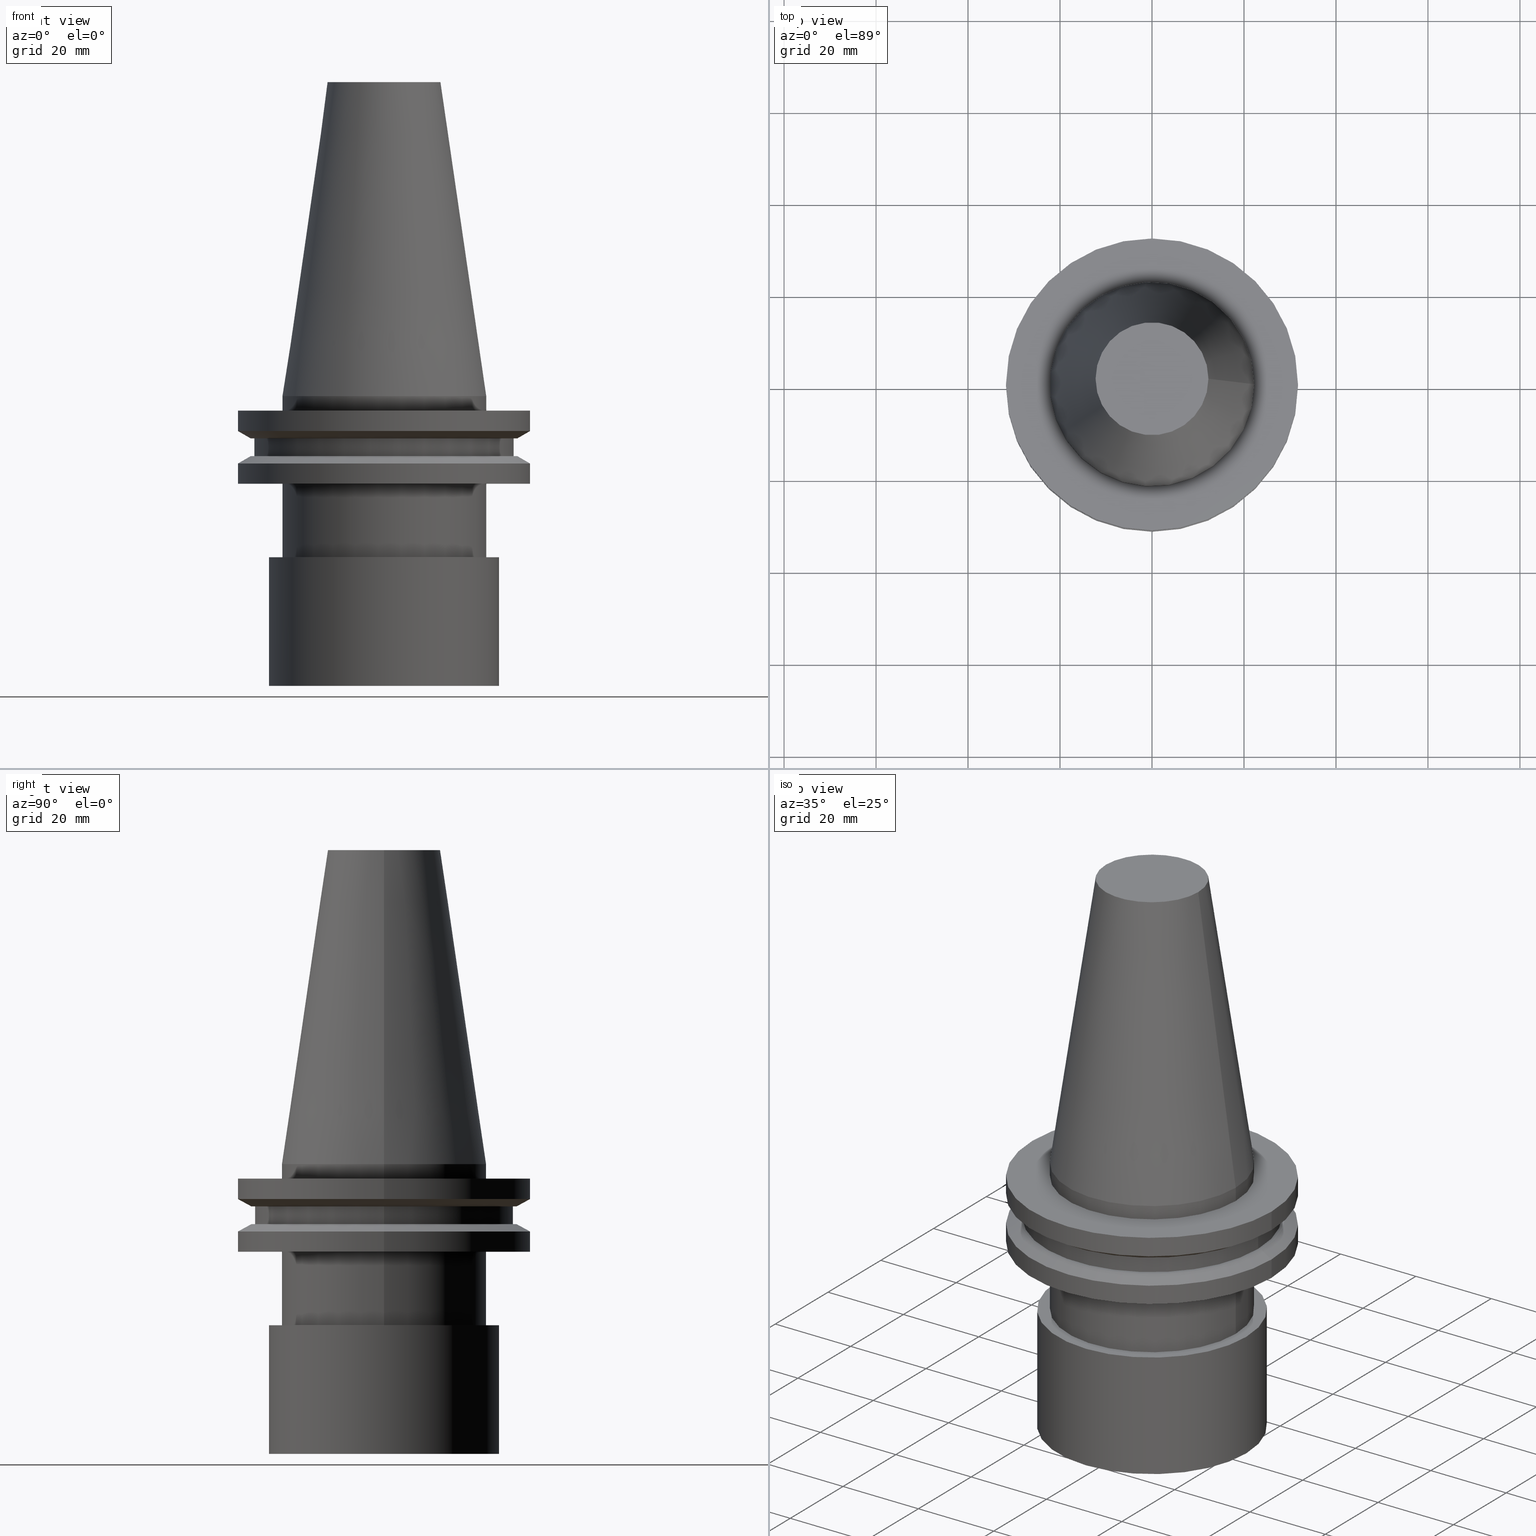
[diagram: canonical four-view strip — front | top / right | iso, engineering-drawing reading convention]
A machine part, canonical four-view strip (front | top / right | iso — engineering-drawing reading convention). The complete STEP part file that produces these views, byte-faithful:
ISO-10303-21;
HEADER;
FILE_DESCRIPTION (( 'STEP AP203' ),
    '1' );
FILE_NAME ('11.368.451.stp',
    '2022-03-09T15:13:18',
    ( '' ),
    ( '' ),
    'SwSTEP 2.0',
    'SolidWorks 2021',
    '' );
FILE_SCHEMA (( 'CONFIG_CONTROL_DESIGN' ));
ENDSEC;

DATA;
#1 = CYLINDRICAL_SURFACE ( 'NONE', #33, 22.22500000000000142 ) ;
#2 = EDGE_CURVE ( 'NONE', #164, #164, #133, .T. ) ;
#3 = DATE_AND_TIME ( #94, #137 ) ;
#4 = CYLINDRICAL_SURFACE ( 'NONE', #263, 25.00000000000000711 ) ;
#5 = PERSON_AND_ORGANIZATION ( #29, #269 ) ;
#6 = CARTESIAN_POINT ( 'NONE',  ( 0.000000000000000000, 0.000000000000000000, -19.04999999999999716 ) ) ;
#7 = AXIS2_PLACEMENT_3D ( 'NONE', #377, #108, #67 ) ;
#8 = DIRECTION ( 'NONE',  ( 0.000000000000000000, 0.000000000000000000, -1.000000000000000000 ) ) ;
#9 = CIRCLE ( 'NONE', #68, 31.75000000000000000 ) ;
#10 = COORDINATED_UNIVERSAL_TIME_OFFSET ( 6, 0, .BEHIND. ) ;
#11 = CARTESIAN_POINT ( 'NONE',  ( 0.000000000000000000, 0.000000000000000000, -13.05499999999999794 ) ) ;
#12 = CARTESIAN_POINT ( 'NONE',  ( 22.22500000000000142, 0.000000000000000000, -3.174999999999997158 ) ) ;
#13 = EDGE_CURVE ( 'NONE', #168, #168, #159, .T. ) ;
#14 = EDGE_LOOP ( 'NONE', ( #147 ) ) ;
#15 = DIRECTION ( 'NONE',  ( 0.000000000000000000, 0.000000000000000000, -1.000000000000000000 ) ) ;
#16 = DIRECTION ( 'NONE',  ( 0.000000000000000000, 3.943406508882353361E-16, 1.000000000000000000 ) ) ;
#17 = ADVANCED_FACE ( 'NONE', ( #181, #27 ), #180, .T. ) ;
#18 = CARTESIAN_POINT ( 'NONE',  ( 28.17999999999999972, 0.000000000000000000, -9.204999999999991189 ) ) ;
#19 = CARTESIAN_POINT ( 'NONE',  ( 0.000000000000000000, 0.000000000000000000, -14.65472339340266572 ) ) ;
#20 = APPROVAL_DATE_TIME ( #297, #187 ) ;
#21 = EDGE_LOOP ( 'NONE', ( #121 ) ) ;
#22 = PERSON_AND_ORGANIZATION ( #29, #269 ) ;
#23 = EDGE_LOOP ( 'NONE', ( #200 ) ) ;
#24 = CYLINDRICAL_SURFACE ( 'NONE', #382, 22.22500000000000142 ) ;
#25 = EDGE_LOOP ( 'NONE', ( #154 ) ) ;
#26 = PERSON_AND_ORGANIZATION_ROLE ( 'creator' ) ;
#27 = FACE_BOUND ( 'NONE', #88, .T. ) ;
#28 = CC_DESIGN_PERSON_AND_ORGANIZATION_ASSIGNMENT ( #122, #173, ( #109 ) ) ;
#29 = PERSON ( 'UNSPECIFIED', 'UNSPECIFIED', 'UNSPECIFIED', ('UNSPECIFIED'), ('UNSPECIFIED'), ('UNSPECIFIED') ) ;
#30 = FACE_OUTER_BOUND ( 'NONE', #171, .T. ) ;
#31 = CARTESIAN_POINT ( 'NONE',  ( 0.000000000000000000, 31.74999999999999289, -19.04999999999999716 ) ) ;
#32 = EDGE_CURVE ( 'NONE', #135, #135, #212, .T. ) ;
#33 = AXIS2_PLACEMENT_3D ( 'NONE', #219, #36, #183 ) ;
#34 = DIRECTION ( 'NONE',  ( 1.000000000000000000, 0.000000000000000000, 0.000000000000000000 ) ) ;
#35 = APPROVAL_STATUS ( 'not_yet_approved' ) ;
#36 = DIRECTION ( 'NONE',  ( -0.000000000000000000, -0.000000000000000000, 1.000000000000000000 ) ) ;
#37 = AXIS2_PLACEMENT_3D ( 'NONE', #100, #288, #374 ) ;
#38 = CARTESIAN_POINT ( 'NONE',  ( 0.000000000000000000, 0.000000000000000000, -19.04999999999999716 ) ) ;
#39 = AXIS2_PLACEMENT_3D ( 'NONE', #93, #95, #312 ) ;
#40 = CARTESIAN_POINT ( 'NONE',  ( 0.000000000000000000, 12.27178102086201150, 68.25000000000000000 ) ) ;
#41 = VERTEX_POINT ( 'NONE', #379 ) ;
#42 = CC_DESIGN_PERSON_AND_ORGANIZATION_ASSIGNMENT ( #5, #395, ( #277 ) ) ;
#43 = EDGE_LOOP ( 'NONE', ( #50 ) ) ;
#44 = AXIS2_PLACEMENT_3D ( 'NONE', #143, #383, #256 ) ;
#45 = FACE_OUTER_BOUND ( 'NONE', #54, .T. ) ;
#46 = DIRECTION ( 'NONE',  ( 1.000000000000000000, 0.000000000000000000, 0.000000000000000000 ) ) ;
#47 = CC_DESIGN_DATE_AND_TIME_ASSIGNMENT ( #279, #244, ( #277 ) ) ;
#48 = CARTESIAN_POINT ( 'NONE',  ( 0.000000000000000000, 25.00000000000000000, -63.00000000000000000 ) ) ;
#49 = ORIENTED_EDGE ( 'NONE', *, *, #148, .T. ) ;
#50 = ORIENTED_EDGE ( 'NONE', *, *, #335, .T. ) ;
#51 = AXIS2_PLACEMENT_3D ( 'NONE', #125, #242, #366 ) ;
#52 = VERTEX_POINT ( 'NONE', #274 ) ;
#53 = ADVANCED_FACE ( 'NONE', ( #300, #61 ), #24, .T. ) ;
#54 = EDGE_LOOP ( 'NONE', ( #230 ) ) ;
#55 = COORDINATED_UNIVERSAL_TIME_OFFSET ( 6, 0, .BEHIND. ) ;
#56 = CARTESIAN_POINT ( 'NONE',  ( 0.000000000000000000, 0.000000000000000000, -3.174999999999997158 ) ) ;
#57 = ORIENTED_EDGE ( 'NONE', *, *, #351, .T. ) ;
#58 = MANIFOLD_SOLID_BREP ( 'CKB', #224 ) ;
#59 = COORDINATED_UNIVERSAL_TIME_OFFSET ( 6, 0, .BEHIND. ) ;
#60 = DIRECTION ( 'NONE',  ( -0.000000000000000000, -0.000000000000000000, 1.000000000000000000 ) ) ;
#61 = FACE_OUTER_BOUND ( 'NONE', #271, .T. ) ;
#62 = DIRECTION ( 'NONE',  ( 1.000000000000000000, 0.000000000000000000, 0.000000000000000000 ) ) ;
#63 = FACE_BOUND ( 'NONE', #389, .T. ) ;
#64 = DIRECTION ( 'NONE',  ( 1.000000000000000000, 0.000000000000000000, 0.000000000000000000 ) ) ;
#65 = FACE_BOUND ( 'NONE', #124, .T. ) ;
#66 = AXIS2_PLACEMENT_3D ( 'NONE', #167, #15, #322 ) ;
#67 = DIRECTION ( 'NONE',  ( -1.000000000000000000, 0.000000000000000000, 0.000000000000000000 ) ) ;
#68 = AXIS2_PLACEMENT_3D ( 'NONE', #218, #336, #64 ) ;
#69 = PLANE ( 'NONE',  #66 ) ;
#70 = DIRECTION ( 'NONE',  ( -0.000000000000000000, -0.000000000000000000, 1.000000000000000000 ) ) ;
#71 = EDGE_CURVE ( 'NONE', #41, #41, #174, .T. ) ;
#72 = AXIS2_PLACEMENT_3D ( 'NONE', #170, #16, #142 ) ;
#73 = APPROVAL_PERSON_ORGANIZATION ( #184, #123, #92 ) ;
#74 = DIRECTION ( 'NONE',  ( 0.000000000000000000, 0.000000000000000000, -1.000000000000000000 ) ) ;
#75 = AXIS2_PLACEMENT_3D ( 'NONE', #6, #160, #251 ) ;
#76 = CARTESIAN_POINT ( 'NONE',  ( 28.17999999999999972, 0.000000000000000000, -13.05499999999999794 ) ) ;
#77 = EDGE_LOOP ( 'NONE', ( #179 ) ) ;
#78 = VERTEX_POINT ( 'NONE', #302 ) ;
#79 = ORIENTED_EDGE ( 'NONE', *, *, #371, .T. ) ;
#80 = CIRCLE ( 'NONE', #316, 28.97919780457007732 ) ;
#81 = APPROVAL_ROLE ( '' ) ;
#82 = ORIENTED_EDGE ( 'NONE', *, *, #211, .T. ) ;
#83 = VERTEX_POINT ( 'NONE', #206 ) ;
#84 = ORIENTED_EDGE ( 'NONE', *, *, #105, .T. ) ;
#85 = ADVANCED_FACE ( 'NONE', ( #30, #128 ), #370, .T. ) ;
#86 = APPROVAL_PERSON_ORGANIZATION ( #384, #330, #81 ) ;
#87 = CARTESIAN_POINT ( 'NONE',  ( 0.000000000000000000, 0.000000000000000000, 0.000000000000000000 ) ) ;
#88 = EDGE_LOOP ( 'NONE', ( #155 ) ) ;
#89 = SECURITY_CLASSIFICATION_LEVEL ( 'unclassified' ) ;
#90 = AXIS2_PLACEMENT_3D ( 'NONE', #31, #340, #34 ) ;
#91 = EDGE_LOOP ( 'NONE', ( #152 ) ) ;
#92 = APPROVAL_ROLE ( '' ) ;
#93 = CARTESIAN_POINT ( 'NONE',  ( 0.000000000000000000, 0.000000000000000000, 68.25000000000000000 ) ) ;
#94 = CALENDAR_DATE ( 2022, 9, 3 ) ;
#95 = DIRECTION ( 'NONE',  ( -0.000000000000000000, -0.000000000000000000, 1.000000000000000000 ) ) ;
#96 = PERSON_AND_ORGANIZATION ( #29, #269 ) ;
#97 = FACE_OUTER_BOUND ( 'NONE', #43, .T. ) ;
#98 = APPLICATION_CONTEXT ( 'configuration controlled 3d designs of mechanical parts and assemblies' ) ;
#99 = CYLINDRICAL_SURFACE ( 'NONE', #172, 31.75000000000000000 ) ;
#100 = CARTESIAN_POINT ( 'NONE',  ( 0.000000000000000000, 0.000000000000000000, -35.04999999999999716 ) ) ;
#101 = CC_DESIGN_APPROVAL ( #123, ( #277 ) ) ;
#102 = DIRECTION ( 'NONE',  ( 1.000000000000000000, 0.000000000000000000, 0.000000000000000000 ) ) ;
#103 = ORIENTED_EDGE ( 'NONE', *, *, #2, .F. ) ;
#104 = PRODUCT_DEFINITION_SHAPE ( 'NONE', 'NONE',  #293 ) ;
#105 = EDGE_CURVE ( 'NONE', #350, #350, #344, .T. ) ;
#106 = FACE_BOUND ( 'NONE', #334, .T. ) ;
#107 = ORIENTED_EDGE ( 'NONE', *, *, #13, .F. ) ;
#108 = DIRECTION ( 'NONE',  ( 0.000000000000000000, 0.000000000000000000, -1.000000000000000000 ) ) ;
#109 = PRODUCT ( '11.368.451', '11.368.451', '', ( #209 ) ) ;
#110 = ORIENTED_EDGE ( 'NONE', *, *, #335, .F. ) ;
#111 = LOCAL_TIME ( 9, 13, 18.00000000000000000, #59 ) ;
#112 = FACE_OUTER_BOUND ( 'NONE', #166, .T. ) ;
#113 = DIRECTION ( 'NONE',  ( -0.000000000000000000, -3.943406508882353361E-16, -1.000000000000000000 ) ) ;
#114 = APPLICATION_CONTEXT ( 'configuration controlled 3d designs of mechanical parts and assemblies' ) ;
#115 = EDGE_LOOP ( 'NONE', ( #84 ) ) ;
#116 = LOCAL_TIME ( 9, 13, 18.00000000000000000, #203 ) ;
#117 = DATE_TIME_ROLE ( 'creation_date' ) ;
#118 = EDGE_LOOP ( 'NONE', ( #359 ) ) ;
#119 = ADVANCED_FACE ( 'NONE', ( #214, #186 ), #1, .T. ) ;
#120 = VERTEX_POINT ( 'NONE', #355 ) ;
#121 = ORIENTED_EDGE ( 'NONE', *, *, #236, .T. ) ;
#122 = PERSON_AND_ORGANIZATION ( #29, #269 ) ;
#123 = APPROVAL ( #35, 'UNSPECIFIED' ) ;
#124 = EDGE_LOOP ( 'NONE', ( #82 ) ) ;
#125 = CARTESIAN_POINT ( 'NONE',  ( 0.000000000000000000, 0.000000000000000000, -9.205000000000005400 ) ) ;
#126 = CARTESIAN_POINT ( 'NONE',  ( 0.000000000000000000, -1.102182119232617911E-14, -63.00000000000000000 ) ) ;
#127 = APPROVAL_DATE_TIME ( #3, #123 ) ;
#128 = FACE_OUTER_BOUND ( 'NONE', #115, .T. ) ;
#129 = FACE_OUTER_BOUND ( 'NONE', #91, .T. ) ;
#130 = PERSON_AND_ORGANIZATION_ROLE ( 'creator' ) ;
#131 = ADVANCED_FACE ( 'NONE', ( #63, #337 ), #313, .F. ) ;
#132 = CARTESIAN_POINT ( 'NONE',  ( 0.000000000000000000, 0.000000000000000000, -9.205000000000005400 ) ) ;
#133 = CIRCLE ( 'NONE', #243, 28.17999999999999972 ) ;
#134 = DIRECTION ( 'NONE',  ( 1.000000000000000000, 0.000000000000000000, 0.000000000000000000 ) ) ;
#135 = VERTEX_POINT ( 'NONE', #294 ) ;
#136 = CONICAL_SURFACE ( 'NONE', #226, 31.75000000000000000, 1.047197551196597853 ) ;
#137 = LOCAL_TIME ( 9, 13, 18.00000000000000000, #286 ) ;
#138 = DIRECTION ( 'NONE',  ( 0.000000000000000000, 1.000000000000000000, -3.943406508882353361E-16 ) ) ;
#139 = ORIENTED_EDGE ( 'NONE', *, *, #2, .T. ) ;
#140 = CC_DESIGN_PERSON_AND_ORGANIZATION_ASSIGNMENT ( #158, #311, ( #283 ) ) ;
#141 = FACE_BOUND ( 'NONE', #14, .T. ) ;
#142 = DIRECTION ( 'NONE',  ( 0.000000000000000000, -1.000000000000000000, 3.943406508882353361E-16 ) ) ;
#143 = CARTESIAN_POINT ( 'NONE',  ( 0.000000000000000000, 28.97919780457007732, -9.204999999999996518 ) ) ;
#144 = CALENDAR_DATE ( 2022, 9, 3 ) ;
#145 = DIRECTION ( 'NONE',  ( -0.000000000000000000, -0.000000000000000000, 1.000000000000000000 ) ) ;
#146 = DATE_AND_TIME ( #144, #150 ) ;
#147 = ORIENTED_EDGE ( 'NONE', *, *, #32, .F. ) ;
#148 = EDGE_CURVE ( 'NONE', #196, #196, #349, .T. ) ;
#149 = AXIS2_PLACEMENT_3D ( 'NONE', #87, #273, #305 ) ;
#150 = LOCAL_TIME ( 9, 13, 18.00000000000000000, #55 ) ;
#151 = CARTESIAN_POINT ( 'NONE',  ( 22.22500000000000142, 0.000000000000000000, 0.000000000000000000 ) ) ;
#152 = ORIENTED_EDGE ( 'NONE', *, *, #222, .F. ) ;
#153 = APPLICATION_PROTOCOL_DEFINITION ( 'international standard', 'config_control_design', 1994, #114 ) ;
#154 = ORIENTED_EDGE ( 'NONE', *, *, #32, .T. ) ;
#155 = ORIENTED_EDGE ( 'NONE', *, *, #258, .T. ) ;
#156 = AXIS2_PLACEMENT_3D ( 'NONE', #48, #291, #138 ) ;
#157 = DIRECTION ( 'NONE',  ( -0.000000000000000000, -0.000000000000000000, 1.000000000000000000 ) ) ;
#158 = PERSON_AND_ORGANIZATION ( #29, #269 ) ;
#159 = CIRCLE ( 'NONE', #190, 22.22500000000000142 ) ;
#160 = DIRECTION ( 'NONE',  ( -0.000000000000000000, -0.000000000000000000, 1.000000000000000000 ) ) ;
#161 = PLANE ( 'NONE',  #90 ) ;
#162 = CARTESIAN_POINT ( 'NONE',  ( 0.000000000000000000, -1.102182119232617438E-14, -62.99999999999998579 ) ) ;
#163 = DIRECTION ( 'NONE',  ( -0.000000000000000000, -0.000000000000000000, 1.000000000000000000 ) ) ;
#164 = VERTEX_POINT ( 'NONE', #18 ) ;
#165 = DIRECTION ( 'NONE',  ( -0.000000000000000000, -0.000000000000000000, 1.000000000000000000 ) ) ;
#166 = EDGE_LOOP ( 'NONE', ( #79 ) ) ;
#167 = CARTESIAN_POINT ( 'NONE',  ( 0.000000000000000000, 31.75000000000000000, -3.174999999999999378 ) ) ;
#168 = VERTEX_POINT ( 'NONE', #12 ) ;
#169 = ADVANCED_FACE ( 'NONE', ( #254, #65 ), #161, .F. ) ;
#170 = CARTESIAN_POINT ( 'NONE',  ( 0.000000000000000000, 1.943806861786963632E-30, -35.04999999999999005 ) ) ;
#171 = EDGE_LOOP ( 'NONE', ( #103 ) ) ;
#172 = AXIS2_PLACEMENT_3D ( 'NONE', #245, #315, #134 ) ;
#173 = PERSON_AND_ORGANIZATION_ROLE ( 'design_owner' ) ;
#174 = CIRCLE ( 'NONE', #333, 31.75000000000000000 ) ;
#175 = ORIENTED_EDGE ( 'NONE', *, *, #287, .F. ) ;
#176 = CALENDAR_DATE ( 2022, 9, 3 ) ;
#177 = DIRECTION ( 'NONE',  ( 1.000000000000000000, 0.000000000000000000, 0.000000000000000000 ) ) ;
#178 = VERTEX_POINT ( 'NONE', #392 ) ;
#179 = ORIENTED_EDGE ( 'NONE', *, *, #287, .T. ) ;
#180 = CONICAL_SURFACE ( 'NONE', #51, 28.97919780457007732, 1.047197551196598297 ) ;
#181 = FACE_OUTER_BOUND ( 'NONE', #329, .T. ) ;
#182 = DIRECTION ( 'NONE',  ( -0.000000000000000000, -0.000000000000000000, 1.000000000000000000 ) ) ;
#183 = DIRECTION ( 'NONE',  ( 1.000000000000000000, 0.000000000000000000, 0.000000000000000000 ) ) ;
#184 = PERSON_AND_ORGANIZATION ( #29, #269 ) ;
#185 = DIRECTION ( 'NONE',  ( -1.000000000000000000, 0.000000000000000000, -0.000000000000000000 ) ) ;
#186 = FACE_OUTER_BOUND ( 'NONE', #77, .T. ) ;
#187 = APPROVAL ( #240, 'UNSPECIFIED' ) ;
#188 = FACE_OUTER_BOUND ( 'NONE', #391, .T. ) ;
#189 = CARTESIAN_POINT ( 'NONE',  ( 0.000000000000000000, 0.000000000000000000, 68.25000000000000000 ) ) ;
#190 = AXIS2_PLACEMENT_3D ( 'NONE', #56, #60, #306 ) ;
#191 = CARTESIAN_POINT ( 'NONE',  ( 0.000000000000000000, 0.000000000000000000, 68.25000000000000000 ) ) ;
#192 = DIRECTION ( 'NONE',  ( -1.000000000000000000, 0.000000000000000000, 0.000000000000000000 ) ) ;
#193 = DESIGN_CONTEXT ( 'detailed design', #114, 'design' ) ;
#194 = FACE_BOUND ( 'NONE', #365, .T. ) ;
#195 = ADVANCED_FACE ( 'NONE', ( #97, #129 ), #4, .T. ) ;
#196 = VERTEX_POINT ( 'NONE', #323 ) ;
#197 = EDGE_LOOP ( 'NONE', ( #275 ) ) ;
#198 = UNCERTAINTY_MEASURE_WITH_UNIT (LENGTH_MEASURE( 1.000000000000000082E-05 ), #390, 'distance_accuracy_value', 'NONE');
#199 = VERTEX_POINT ( 'NONE', #299 ) ;
#200 = ORIENTED_EDGE ( 'NONE', *, *, #272, .F. ) ;
#201 = ORIENTED_EDGE ( 'NONE', *, *, #71, .F. ) ;
#202 = AXIS2_PLACEMENT_3D ( 'NONE', #307, #8, #185 ) ;
#203 = COORDINATED_UNIVERSAL_TIME_OFFSET ( 6, 0, .BEHIND. ) ;
#204 = CC_DESIGN_DATE_AND_TIME_ASSIGNMENT ( #146, #117, ( #293 ) ) ;
#205 = EDGE_LOOP ( 'NONE', ( #175 ) ) ;
#206 = CARTESIAN_POINT ( 'NONE',  ( 0.000000000000000000, 25.00000000000000000, -35.04999999999999005 ) ) ;
#207 = ORIENTED_EDGE ( 'NONE', *, *, #371, .F. ) ;
#208 = AXIS2_PLACEMENT_3D ( 'NONE', #38, #163, #62 ) ;
#209 = MECHANICAL_CONTEXT ( 'NONE', #98, 'mechanical' ) ;
#210 = CARTESIAN_POINT ( 'NONE',  ( 0.000000000000000000, 0.000000000000000000, -9.204999999999991189 ) ) ;
#211 = EDGE_CURVE ( 'NONE', #52, #52, #252, .T. ) ;
#212 = CIRCLE ( 'NONE', #231, 28.97919780457008088 ) ;
#213 = DIRECTION ( 'NONE',  ( -0.000000000000000000, -0.000000000000000000, 1.000000000000000000 ) ) ;
#214 = FACE_OUTER_BOUND ( 'NONE', #303, .T. ) ;
#215 =( GEOMETRIC_REPRESENTATION_CONTEXT ( 3 ) GLOBAL_UNCERTAINTY_ASSIGNED_CONTEXT ( ( #198 ) ) GLOBAL_UNIT_ASSIGNED_CONTEXT ( ( #390, #352, #328 ) ) REPRESENTATION_CONTEXT ( 'NONE', 'WORKASPACE' ) );
#216 = CALENDAR_DATE ( 2022, 9, 3 ) ;
#217 = DIRECTION ( 'NONE',  ( -0.000000000000000000, -0.000000000000000000, 1.000000000000000000 ) ) ;
#218 = CARTESIAN_POINT ( 'NONE',  ( 0.000000000000000000, 0.000000000000000000, -7.605276606597335842 ) ) ;
#219 = CARTESIAN_POINT ( 'NONE',  ( 0.000000000000000000, 0.000000000000000000, 68.25000000000000000 ) ) ;
#220 = AXIS2_PLACEMENT_3D ( 'NONE', #189, #70, #102 ) ;
#221 = DIRECTION ( 'NONE',  ( -0.000000000000000000, -3.943406508882353361E-16, -1.000000000000000000 ) ) ;
#222 = EDGE_CURVE ( 'NONE', #363, #363, #257, .T. ) ;
#223 = CARTESIAN_POINT ( 'NONE',  ( 0.000000000000000000, 0.000000000000000000, 0.000000000000000000 ) ) ;
#224 = CLOSED_SHELL ( 'NONE', ( #357, #301, #119, #169, #266, #376, #131, #85, #346, #17, #380, #327, #53, #368, #195, #339 ) ) ;
#225 = DIRECTION ( 'NONE',  ( 1.000000000000000000, 0.000000000000000000, 0.000000000000000000 ) ) ;
#226 = AXIS2_PLACEMENT_3D ( 'NONE', #19, #74, #192 ) ;
#227 = CYLINDRICAL_SURFACE ( 'NONE', #354, 31.75000000000000000 ) ;
#228 = EDGE_LOOP ( 'NONE', ( #268 ) ) ;
#229 = DIRECTION ( 'NONE',  ( -0.000000000000000000, -0.000000000000000000, 1.000000000000000000 ) ) ;
#230 = ORIENTED_EDGE ( 'NONE', *, *, #148, .F. ) ;
#231 = AXIS2_PLACEMENT_3D ( 'NONE', #265, #213, #177 ) ;
#232 = PLANE ( 'NONE',  #44 ) ;
#233 = VERTEX_POINT ( 'NONE', #151 ) ;
#234 = EDGE_LOOP ( 'NONE', ( #387 ) ) ;
#235 = CIRCLE ( 'NONE', #393, 25.00000000000000000 ) ;
#236 = EDGE_CURVE ( 'NONE', #388, #388, #9, .T. ) ;
#237 = ORIENTED_EDGE ( 'NONE', *, *, #13, .T. ) ;
#238 = CARTESIAN_POINT ( 'NONE',  ( 0.000000000000000000, 25.00000000000000000, -63.00000000000000000 ) ) ;
#239 = EDGE_LOOP ( 'NONE', ( #110 ) ) ;
#240 = APPROVAL_STATUS ( 'not_yet_approved' ) ;
#241 = EDGE_LOOP ( 'NONE', ( #207 ) ) ;
#242 = DIRECTION ( 'NONE',  ( -0.000000000000000000, -0.000000000000000000, 1.000000000000000000 ) ) ;
#243 = AXIS2_PLACEMENT_3D ( 'NONE', #210, #145, #332 ) ;
#244 = DATE_TIME_ROLE ( 'classification_date' ) ;
#245 = CARTESIAN_POINT ( 'NONE',  ( 0.000000000000000000, 0.000000000000000000, 68.25000000000000000 ) ) ;
#246 = APPROVAL_DATE_TIME ( #325, #330 ) ;
#247 = DIRECTION ( 'NONE',  ( 1.000000000000000000, 0.000000000000000000, 0.000000000000000000 ) ) ;
#248 = CIRCLE ( 'NONE', #220, 12.27178102086201150 ) ;
#249 = LOCAL_TIME ( 9, 13, 18.00000000000000000, #10 ) ;
#250 = SHAPE_DEFINITION_REPRESENTATION ( #104, #289 ) ;
#251 = DIRECTION ( 'NONE',  ( 1.000000000000000000, 0.000000000000000000, 0.000000000000000000 ) ) ;
#252 = CIRCLE ( 'NONE', #75, 22.22500000000000142 ) ;
#253 = DIRECTION ( 'NONE',  ( 1.000000000000000000, 0.000000000000000000, 0.000000000000000000 ) ) ;
#254 = FACE_OUTER_BOUND ( 'NONE', #23, .T. ) ;
#255 = PLANE ( 'NONE',  #314 ) ;
#256 = DIRECTION ( 'NONE',  ( 1.000000000000000000, 0.000000000000000000, 0.000000000000000000 ) ) ;
#257 = CIRCLE ( 'NONE', #304, 25.00000000000001066 ) ;
#258 = EDGE_CURVE ( 'NONE', #78, #78, #80, .T. ) ;
#259 = FACE_OUTER_BOUND ( 'NONE', #394, .T. ) ;
#260 = PRODUCT_RELATED_PRODUCT_CATEGORY ( 'detail', '', ( #109 ) ) ;
#261 = FACE_BOUND ( 'NONE', #234, .T. ) ;
#262 = FACE_OUTER_BOUND ( 'NONE', #21, .T. ) ;
#263 = AXIS2_PLACEMENT_3D ( 'NONE', #126, #338, #281 ) ;
#264 = PERSON_AND_ORGANIZATION ( #29, #269 ) ;
#265 = CARTESIAN_POINT ( 'NONE',  ( 0.000000000000000000, 0.000000000000000000, -13.05499999999999794 ) ) ;
#266 = ADVANCED_FACE ( 'NONE', ( #188, #373 ), #99, .T. ) ;
#267 = CALENDAR_DATE ( 2022, 9, 3 ) ;
#268 = ORIENTED_EDGE ( 'NONE', *, *, #71, .T. ) ;
#269 = ORGANIZATION ( 'UNSPECIFIED', 'UNSPECIFIED', '' ) ;
#270 = APPLICATION_PROTOCOL_DEFINITION ( 'international standard', 'config_control_design', 1994, #98 ) ;
#271 = EDGE_LOOP ( 'NONE', ( #237 ) ) ;
#272 = EDGE_CURVE ( 'NONE', #178, #178, #367, .T. ) ;
#273 = DIRECTION ( 'NONE',  ( 0.000000000000000000, 0.000000000000000000, 1.000000000000000000 ) ) ;
#274 = CARTESIAN_POINT ( 'NONE',  ( 22.22500000000000142, 0.000000000000000000, -19.04999999999999716 ) ) ;
#275 = ORIENTED_EDGE ( 'NONE', *, *, #258, .F. ) ;
#276 = CONICAL_SURFACE ( 'NONE', #7, 22.22500000000000142, 0.1448138465474119174 ) ;
#277 = SECURITY_CLASSIFICATION ( '', '', #89 ) ;
#278 = CARTESIAN_POINT ( 'NONE',  ( 0.000000000000000000, 0.000000000000000000, -14.65472339340266572 ) ) ;
#279 = DATE_AND_TIME ( #216, #249 ) ;
#280 = DIRECTION ( 'NONE',  ( 1.000000000000000000, 0.000000000000000000, 0.000000000000000000 ) ) ;
#281 = DIRECTION ( 'NONE',  ( 0.000000000000000000, 1.000000000000000000, -5.551115123125780730E-16 ) ) ;
#282 = APPROVAL_PERSON_ORGANIZATION ( #264, #187, #331 ) ;
#283 = PRODUCT_DEFINITION_FORMATION_WITH_SPECIFIED_SOURCE ( 'ANY', '', #109, .NOT_KNOWN. ) ;
#284 = DIRECTION ( 'NONE',  ( 0.000000000000000000, 1.000000000000000000, -5.551115123125780730E-16 ) ) ;
#285 = AXIS2_PLACEMENT_3D ( 'NONE', #11, #217, #280 ) ;
#286 = COORDINATED_UNIVERSAL_TIME_OFFSET ( 6, 0, .BEHIND. ) ;
#287 = EDGE_CURVE ( 'NONE', #120, #120, #364, .T. ) ;
#288 = DIRECTION ( 'NONE',  ( -0.000000000000000000, -0.000000000000000000, 1.000000000000000000 ) ) ;
#289 = ADVANCED_BREP_SHAPE_REPRESENTATION ( '11.368.451', ( #58, #149 ), #215 ) ;
#290 = PLANE ( 'NONE',  #156 ) ;
#291 = DIRECTION ( 'NONE',  ( 0.000000000000000000, -3.943406508882353361E-16, -1.000000000000000000 ) ) ;
#292 = PLANE ( 'NONE',  #72 ) ;
#293 = PRODUCT_DEFINITION ( 'UNKNOWN', '', #283, #193 ) ;
#294 = CARTESIAN_POINT ( 'NONE',  ( 28.97919780457008088, 0.000000000000000000, -13.05499999999999794 ) ) ;
#295 = FACE_OUTER_BOUND ( 'NONE', #362, .T. ) ;
#296 = CARTESIAN_POINT ( 'NONE',  ( 0.000000000000000000, 0.000000000000000000, 68.25000000000000000 ) ) ;
#297 = DATE_AND_TIME ( #267, #111 ) ;
#298 = ORIENTED_EDGE ( 'NONE', *, *, #211, .F. ) ;
#299 = CARTESIAN_POINT ( 'NONE',  ( 12.27178102086201150, 0.000000000000000000, 68.25000000000000000 ) ) ;
#300 = FACE_OUTER_BOUND ( 'NONE', #241, .T. ) ;
#301 = ADVANCED_FACE ( 'NONE', ( #343 ), #255, .F. ) ;
#302 = CARTESIAN_POINT ( 'NONE',  ( 28.97919780457007732, 0.000000000000000000, -9.205000000000005400 ) ) ;
#303 = EDGE_LOOP ( 'NONE', ( #298 ) ) ;
#304 = AXIS2_PLACEMENT_3D ( 'NONE', #162, #221, #284 ) ;
#305 = DIRECTION ( 'NONE',  ( 1.000000000000000000, 0.000000000000000000, 0.000000000000000000 ) ) ;
#306 = DIRECTION ( 'NONE',  ( 1.000000000000000000, 0.000000000000000000, 0.000000000000000000 ) ) ;
#307 = CARTESIAN_POINT ( 'NONE',  ( 0.000000000000000000, 28.17999999999999972, -13.05499999999999794 ) ) ;
#308 = CIRCLE ( 'NONE', #386, 22.22500000000000142 ) ;
#309 = CC_DESIGN_APPROVAL ( #330, ( #283 ) ) ;
#310 = CARTESIAN_POINT ( 'NONE',  ( 0.000000000000000000, 0.000000000000000000, -3.174999999999997158 ) ) ;
#311 = PERSON_AND_ORGANIZATION_ROLE ( 'design_supplier' ) ;
#312 = DIRECTION ( 'NONE',  ( 1.000000000000000000, 0.000000000000000000, 0.000000000000000000 ) ) ;
#313 = PLANE ( 'NONE',  #202 ) ;
#314 = AXIS2_PLACEMENT_3D ( 'NONE', #40, #375, #378 ) ;
#315 = DIRECTION ( 'NONE',  ( -0.000000000000000000, -0.000000000000000000, 1.000000000000000000 ) ) ;
#316 = AXIS2_PLACEMENT_3D ( 'NONE', #132, #182, #253 ) ;
#317 = FACE_BOUND ( 'NONE', #205, .T. ) ;
#318 = CARTESIAN_POINT ( 'NONE',  ( 0.000000000000000000, 3.081487911019577365E-30, -35.04999999999998295 ) ) ;
#319 = CC_DESIGN_APPROVAL ( #187, ( #293 ) ) ;
#320 = DIRECTION ( 'NONE',  ( 0.000000000000000000, 1.000000000000000000, -2.775557561562891351E-16 ) ) ;
#321 = CC_DESIGN_PERSON_AND_ORGANIZATION_ASSIGNMENT ( #96, #130, ( #283 ) ) ;
#322 = DIRECTION ( 'NONE',  ( -1.000000000000000000, 0.000000000000000000, -0.000000000000000000 ) ) ;
#323 = CARTESIAN_POINT ( 'NONE',  ( 31.75000000000000000, 0.000000000000000000, -3.174999999999997158 ) ) ;
#324 = DIRECTION ( 'NONE',  ( 1.000000000000000000, 0.000000000000000000, 0.000000000000000000 ) ) ;
#325 = DATE_AND_TIME ( #176, #116 ) ;
#326 = ORIENTED_EDGE ( 'NONE', *, *, #236, .F. ) ;
#327 = ADVANCED_FACE ( 'NONE', ( #194, #295 ), #69, .F. ) ;
#328 =( NAMED_UNIT ( * ) SI_UNIT ( $, .STERADIAN. ) SOLID_ANGLE_UNIT ( ) );
#329 = EDGE_LOOP ( 'NONE', ( #326 ) ) ;
#330 = APPROVAL ( #358, 'UNSPECIFIED' ) ;
#331 = APPROVAL_ROLE ( '' ) ;
#332 = DIRECTION ( 'NONE',  ( 1.000000000000000000, 0.000000000000000000, 0.000000000000000000 ) ) ;
#333 = AXIS2_PLACEMENT_3D ( 'NONE', #278, #369, #247 ) ;
#334 = EDGE_LOOP ( 'NONE', ( #139 ) ) ;
#335 = EDGE_CURVE ( 'NONE', #83, #83, #235, .T. ) ;
#336 = DIRECTION ( 'NONE',  ( -0.000000000000000000, -0.000000000000000000, 1.000000000000000000 ) ) ;
#337 = FACE_OUTER_BOUND ( 'NONE', #25, .T. ) ;
#338 = DIRECTION ( 'NONE',  ( -0.000000000000000000, -3.943406508882353361E-16, -1.000000000000000000 ) ) ;
#339 = ADVANCED_FACE ( 'NONE', ( #259 ), #290, .T. ) ;
#340 = DIRECTION ( 'NONE',  ( 0.000000000000000000, -0.000000000000000000, 1.000000000000000000 ) ) ;
#341 = CC_DESIGN_PERSON_AND_ORGANIZATION_ASSIGNMENT ( #22, #26, ( #293 ) ) ;
#342 = CC_DESIGN_SECURITY_CLASSIFICATION ( #277, ( #283 ) ) ;
#343 = FACE_OUTER_BOUND ( 'NONE', #381, .T. ) ;
#344 = CIRCLE ( 'NONE', #285, 28.17999999999999972 ) ;
#345 = FACE_OUTER_BOUND ( 'NONE', #228, .T. ) ;
#346 = ADVANCED_FACE ( 'NONE', ( #347, #106 ), #232, .F. ) ;
#347 = FACE_OUTER_BOUND ( 'NONE', #197, .T. ) ;
#348 = FACE_OUTER_BOUND ( 'NONE', #239, .T. ) ;
#349 = CIRCLE ( 'NONE', #360, 31.75000000000000000 ) ;
#350 = VERTEX_POINT ( 'NONE', #76 ) ;
#351 = EDGE_CURVE ( 'NONE', #199, #199, #248, .T. ) ;
#352 =( NAMED_UNIT ( * ) PLANE_ANGLE_UNIT ( ) SI_UNIT ( $, .RADIAN. ) );
#353 = ORIENTED_EDGE ( 'NONE', *, *, #105, .F. ) ;
#354 = AXIS2_PLACEMENT_3D ( 'NONE', #191, #229, #46 ) ;
#355 = CARTESIAN_POINT ( 'NONE',  ( 22.22499999999999787, 0.000000000000000000, -35.04999999999999716 ) ) ;
#356 = DIRECTION ( 'NONE',  ( -0.000000000000000000, -0.000000000000000000, 1.000000000000000000 ) ) ;
#357 = ADVANCED_FACE ( 'NONE', ( #261, #112 ), #276, .T. ) ;
#358 = APPROVAL_STATUS ( 'not_yet_approved' ) ;
#359 = ORIENTED_EDGE ( 'NONE', *, *, #272, .T. ) ;
#360 = AXIS2_PLACEMENT_3D ( 'NONE', #310, #157, #372 ) ;
#361 = CARTESIAN_POINT ( 'NONE',  ( 31.75000000000000000, 0.000000000000000000, -7.605276606597335842 ) ) ;
#362 = EDGE_LOOP ( 'NONE', ( #49 ) ) ;
#363 = VERTEX_POINT ( 'NONE', #238 ) ;
#364 = CIRCLE ( 'NONE', #37, 22.22499999999999787 ) ;
#365 = EDGE_LOOP ( 'NONE', ( #107 ) ) ;
#366 = DIRECTION ( 'NONE',  ( 1.000000000000000000, 0.000000000000000000, 0.000000000000000000 ) ) ;
#367 = CIRCLE ( 'NONE', #208, 31.74999999999999289 ) ;
#368 = ADVANCED_FACE ( 'NONE', ( #317, #348 ), #292, .T. ) ;
#369 = DIRECTION ( 'NONE',  ( -0.000000000000000000, -0.000000000000000000, 1.000000000000000000 ) ) ;
#370 = CYLINDRICAL_SURFACE ( 'NONE', #39, 28.17999999999999972 ) ;
#371 = EDGE_CURVE ( 'NONE', #233, #233, #308, .T. ) ;
#372 = DIRECTION ( 'NONE',  ( 1.000000000000000000, 0.000000000000000000, 0.000000000000000000 ) ) ;
#373 = FACE_OUTER_BOUND ( 'NONE', #118, .T. ) ;
#374 = DIRECTION ( 'NONE',  ( 1.000000000000000000, 0.000000000000000000, 0.000000000000000000 ) ) ;
#375 = DIRECTION ( 'NONE',  ( 0.000000000000000000, 0.000000000000000000, -1.000000000000000000 ) ) ;
#376 = ADVANCED_FACE ( 'NONE', ( #141, #345 ), #136, .T. ) ;
#377 = CARTESIAN_POINT ( 'NONE',  ( 0.000000000000000000, 0.000000000000000000, 0.000000000000000000 ) ) ;
#378 = DIRECTION ( 'NONE',  ( -1.000000000000000000, 0.000000000000000000, -0.000000000000000000 ) ) ;
#379 = CARTESIAN_POINT ( 'NONE',  ( 31.75000000000000000, 0.000000000000000000, -14.65472339340266572 ) ) ;
#380 = ADVANCED_FACE ( 'NONE', ( #45, #262 ), #227, .T. ) ;
#381 = EDGE_LOOP ( 'NONE', ( #57 ) ) ;
#382 = AXIS2_PLACEMENT_3D ( 'NONE', #296, #356, #324 ) ;
#383 = DIRECTION ( 'NONE',  ( 0.000000000000000000, -0.000000000000000000, 1.000000000000000000 ) ) ;
#384 = PERSON_AND_ORGANIZATION ( #29, #269 ) ;
#385 = ORIENTED_EDGE ( 'NONE', *, *, #222, .T. ) ;
#386 = AXIS2_PLACEMENT_3D ( 'NONE', #223, #165, #225 ) ;
#387 = ORIENTED_EDGE ( 'NONE', *, *, #351, .F. ) ;
#388 = VERTEX_POINT ( 'NONE', #361 ) ;
#389 = EDGE_LOOP ( 'NONE', ( #353 ) ) ;
#390 =( LENGTH_UNIT ( ) NAMED_UNIT ( * ) SI_UNIT ( .MILLI., .METRE. ) );
#391 = EDGE_LOOP ( 'NONE', ( #201 ) ) ;
#392 = CARTESIAN_POINT ( 'NONE',  ( 31.74999999999999289, 0.000000000000000000, -19.04999999999999716 ) ) ;
#393 = AXIS2_PLACEMENT_3D ( 'NONE', #318, #113, #320 ) ;
#394 = EDGE_LOOP ( 'NONE', ( #385 ) ) ;
#395 = PERSON_AND_ORGANIZATION_ROLE ( 'classification_officer' ) ;
ENDSEC;
END-ISO-10303-21;
